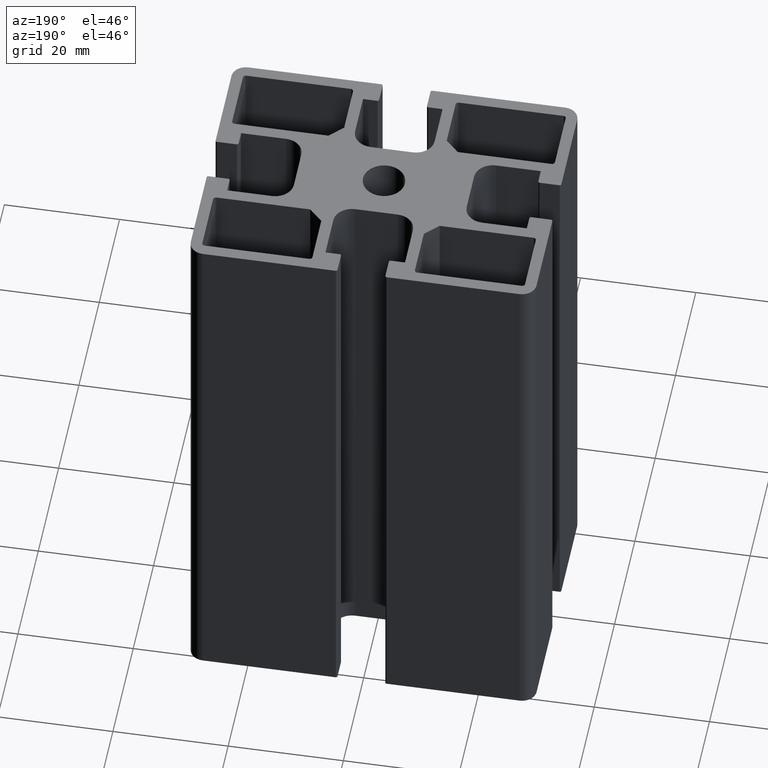
[diagram: clean part render]
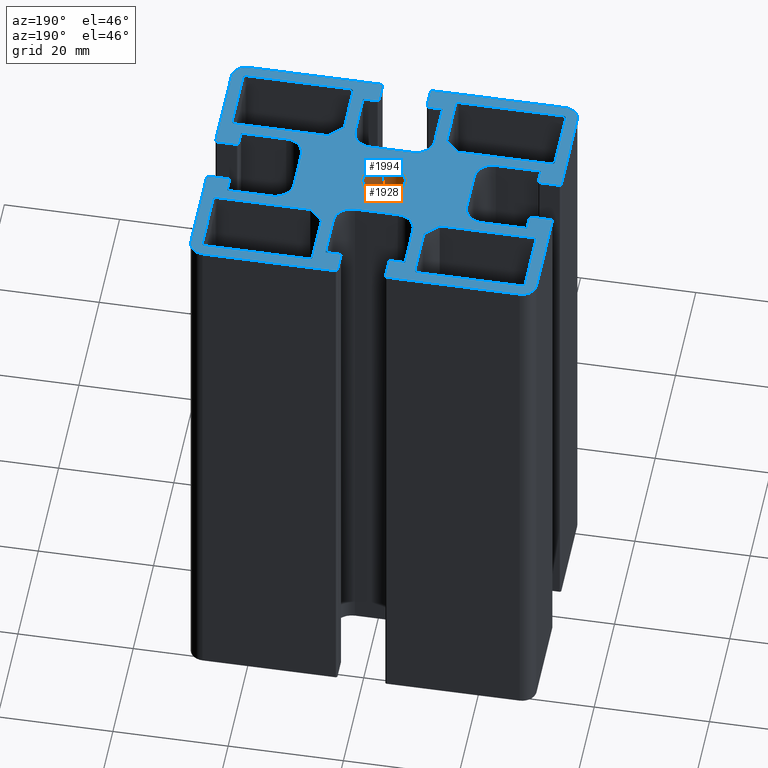
[diagram: same view with the hole feature highlighted: cylindrical wall and planar end face, labeled with their STEP entity ids]
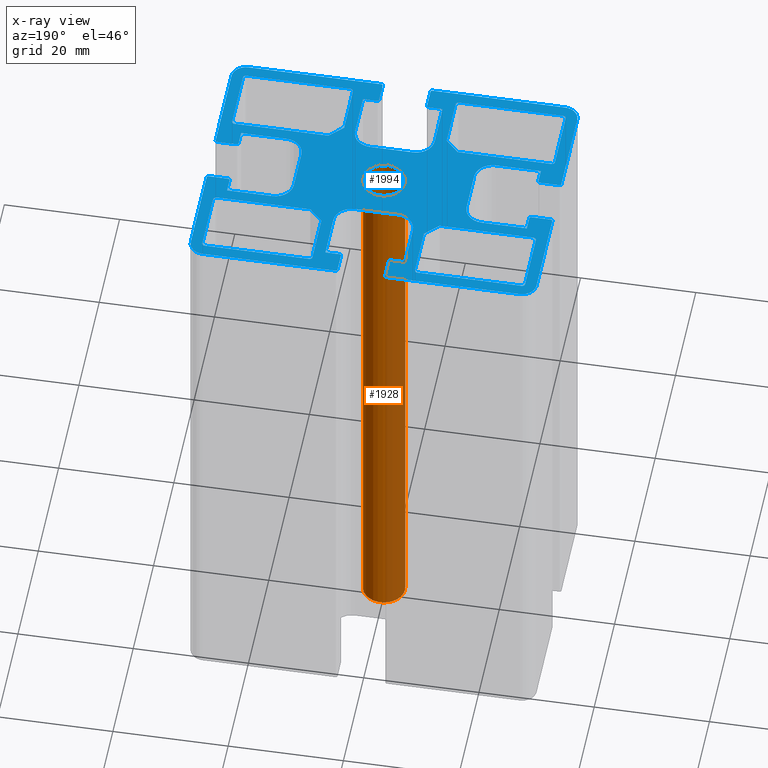
[diagram: x-ray of the same camera — body ghosted, the hole faces saturated]
A machine part, auxiliary view. The highlighted faces form one hole feature of diameter 7.3 mm: the cylindrical wall (entity #1928, orange) and its adjacent planar end face (entity #1994, blue) — they share a circular edge in the B-rep.
The next image is the same camera in x-ray (body ghosted, the hole faces saturated) — the bore reads through the body.
Wall:
#15=FACE_BOUND('',#281,.T.);
#50=CIRCLE('',#2054,3.64999999999984);
#51=CIRCLE('',#2055,3.64999999999984);
#120=CYLINDRICAL_SURFACE('',#2053,3.64999999999984);
#181=FACE_OUTER_BOUND('',#280,.T.);
#280=EDGE_LOOP('',(#1386));
#281=EDGE_LOOP('',(#1387));
#838=VERTEX_POINT('',#2944);
#839=VERTEX_POINT('',#2946);
#1064=EDGE_CURVE('',#838,#838,#50,.T.);
#1065=EDGE_CURVE('',#839,#839,#51,.T.);
#1386=ORIENTED_EDGE('',*,*,#1064,.F.);
#1387=ORIENTED_EDGE('',*,*,#1065,.F.);
#1928=ADVANCED_FACE('',(#181,#15),#120,.F.);
#2053=AXIS2_PLACEMENT_3D('',#2943,#2364,#2365);
#2054=AXIS2_PLACEMENT_3D('',#2945,#2366,#2367);
#2055=AXIS2_PLACEMENT_3D('',#2947,#2368,#2369);
#2364=DIRECTION('center_axis',(0.,0.,1.));
#2365=DIRECTION('ref_axis',(-1.,0.,0.));
#2366=DIRECTION('center_axis',(0.,0.,1.));
#2367=DIRECTION('ref_axis',(-1.,0.,0.));
#2368=DIRECTION('center_axis',(0.,0.,-1.));
#2369=DIRECTION('ref_axis',(-1.,0.,0.));
#2943=CARTESIAN_POINT('Origin',(0.,0.,0.));
#2944=CARTESIAN_POINT('',(3.64999999999984,4.46996081688765E-16,-50.));
#2945=CARTESIAN_POINT('Origin',(0.,0.,-50.));
#2946=CARTESIAN_POINT('',(3.64999999999984,4.46996081688765E-16,50.));
#2947=CARTESIAN_POINT('Origin',(0.,0.,50.));
End face:
#21=FACE_BOUND('',#353,.T.);
#22=FACE_BOUND('',#354,.T.);
#23=FACE_BOUND('',#355,.T.);
#24=FACE_BOUND('',#356,.T.);
#25=FACE_BOUND('',#357,.T.);
#27=CIRCLE('',#2000,0.499999999999987);
#29=CIRCLE('',#2004,0.499999999999987);
#31=CIRCLE('',#2008,0.499999999999987);
#33=CIRCLE('',#2014,0.499999999999987);
#35=CIRCLE('',#2018,0.499999999999987);
#37=CIRCLE('',#2022,0.499999999999987);
#39=CIRCLE('',#2028,0.499999999999987);
#41=CIRCLE('',#2032,0.499999999999987);
#43=CIRCLE('',#2036,0.499999999999987);
#45=CIRCLE('',#2042,0.499999999999987);
#47=CIRCLE('',#2046,0.499999999999987);
#49=CIRCLE('',#2050,0.499999999999987);
#51=CIRCLE('',#2055,3.64999999999984);
#80=CIRCLE('',#2087,0.299999999999996);
#81=CIRCLE('',#2090,0.299999999999996);
#82=CIRCLE('',#2093,2.50000000000002);
#83=CIRCLE('',#2096,0.299999999999996);
#84=CIRCLE('',#2099,0.299999999999996);
#85=CIRCLE('',#2103,3.20000000000002);
#86=CIRCLE('',#2106,3.20000000000002);
#87=CIRCLE('',#2110,0.299999999999996);
#88=CIRCLE('',#2113,0.299999999999996);
#89=CIRCLE('',#2116,2.50000000000002);
#90=CIRCLE('',#2119,0.299999999999996);
#91=CIRCLE('',#2122,0.299999999999996);
#92=CIRCLE('',#2126,3.20000000000002);
#93=CIRCLE('',#2129,3.20000000000002);
#94=CIRCLE('',#2133,0.299999999999996);
#95=CIRCLE('',#2136,0.299999999999996);
#96=CIRCLE('',#2139,2.50000000000002);
#97=CIRCLE('',#2142,0.299999999999996);
#98=CIRCLE('',#2145,0.299999999999996);
#99=CIRCLE('',#2149,3.20000000000002);
#100=CIRCLE('',#2152,3.20000000000002);
#101=CIRCLE('',#2156,0.299999999999996);
#102=CIRCLE('',#2159,0.299999999999996);
#103=CIRCLE('',#2162,2.50000000000002);
#104=CIRCLE('',#2165,0.299999999999996);
#105=CIRCLE('',#2168,0.299999999999996);
#106=CIRCLE('',#2172,3.20000000000002);
#107=CIRCLE('',#2175,3.20000000000002);
#247=FACE_OUTER_BOUND('',#352,.T.);
#352=EDGE_LOOP('',(#1741,#1742,#1743,#1744,#1745,#1746,#1747,#1748,#1749,
#1750,#1751,#1752,#1753,#1754,#1755,#1756,#1757,#1758,#1759,#1760,#1761,
#1762,#1763,#1764,#1765,#1766,#1767,#1768,#1769,#1770,#1771,#1772,#1773,
#1774,#1775,#1776,#1777,#1778,#1779,#1780,#1781,#1782,#1783,#1784,#1785,
#1786,#1787,#1788,#1789,#1790,#1791,#1792,#1793,#1794,#1795,#1796,#1797,
#1798,#1799,#1800,#1801,#1802,#1803,#1804));
#353=EDGE_LOOP('',(#1805,#1806,#1807,#1808,#1809,#1810,#1811,#1812));
#354=EDGE_LOOP('',(#1813,#1814,#1815,#1816,#1817,#1818,#1819,#1820));
#355=EDGE_LOOP('',(#1821,#1822,#1823,#1824,#1825,#1826,#1827,#1828));
#356=EDGE_LOOP('',(#1829,#1830,#1831,#1832,#1833,#1834,#1835,#1836));
#357=EDGE_LOOP('',(#1837));
#361=LINE('',#2759,#569);
#365=LINE('',#2771,#573);
#369=LINE('',#2783,#577);
#373=LINE('',#2795,#581);
#375=LINE('',#2798,#583);
#379=LINE('',#2807,#587);
#383=LINE('',#2819,#591);
#387=LINE('',#2831,#595);
#391=LINE('',#2843,#599);
#393=LINE('',#2846,#601);
#397=LINE('',#2855,#605);
#401=LINE('',#2867,#609);
#405=LINE('',#2879,#613);
#409=LINE('',#2891,#617);
#411=LINE('',#2894,#619);
#415=LINE('',#2903,#623);
#419=LINE('',#2915,#627);
#423=LINE('',#2927,#631);
#427=LINE('',#2939,#635);
#429=LINE('',#2942,#637);
#467=LINE('',#3081,#675);
#470=LINE('',#3089,#678);
#473=LINE('',#3097,#681);
#476=LINE('',#3105,#684);
#479=LINE('',#3113,#687);
#482=LINE('',#3121,#690);
#484=LINE('',#3125,#692);
#487=LINE('',#3133,#695);
#490=LINE('',#3141,#698);
#492=LINE('',#3145,#700);
#495=LINE('',#3153,#703);
#498=LINE('',#3161,#706);
#501=LINE('',#3169,#709);
#504=LINE('',#3177,#712);
#507=LINE('',#3185,#715);
#509=LINE('',#3189,#717);
#512=LINE('',#3197,#720);
#515=LINE('',#3205,#723);
#517=LINE('',#3209,#725);
#520=LINE('',#3217,#728);
#523=LINE('',#3225,#731);
#526=LINE('',#3233,#734);
#529=LINE('',#3241,#737);
#532=LINE('',#3249,#740);
#534=LINE('',#3253,#742);
#537=LINE('',#3261,#745);
#540=LINE('',#3269,#748);
#542=LINE('',#3273,#750);
#545=LINE('',#3281,#753);
#548=LINE('',#3289,#756);
#551=LINE('',#3297,#759);
#554=LINE('',#3305,#762);
#557=LINE('',#3313,#765);
#559=LINE('',#3317,#767);
#562=LINE('',#3325,#770);
#565=LINE('',#3332,#773);
#569=VECTOR('',#2185,8.76654762208418);
#573=VECTOR('',#2197,18.1000000000006);
#577=VECTOR('',#2209,10.5999999999996);
#581=VECTOR('',#2221,16.2665476220846);
#583=VECTOR('',#2225,3.3000000000002);
#587=VECTOR('',#2231,16.2665476220917);
#591=VECTOR('',#2243,10.6000000000007);
#595=VECTOR('',#2255,18.1000000000006);
#599=VECTOR('',#2267,8.76654762209043);
#601=VECTOR('',#2271,3.29999999999106);
#605=VECTOR('',#2277,8.76654762208545);
#609=VECTOR('',#2289,18.0999999999995);
#613=VECTOR('',#2301,10.6);
#617=VECTOR('',#2313,16.2665476220846);
#619=VECTOR('',#2317,3.29999999999899);
#623=VECTOR('',#2323,16.2665476220786);
#627=VECTOR('',#2335,10.5999999999996);
#631=VECTOR('',#2347,18.0999999999997);
#635=VECTOR('',#2359,8.76654762207764);
#637=VECTOR('',#2363,3.30000000000844);
#675=VECTOR('',#2467,2.45000000000005);
#678=VECTOR('',#2476,3.40000000000117);
#681=VECTOR('',#2485,15.5499999999998);
#684=VECTOR('',#2494,23.0500000000004);
#687=VECTOR('',#2503,3.39999999999989);
#690=VECTOR('',#2512,2.45000000000005);
#692=VECTOR('',#2516,7.80000000000001);
#695=VECTOR('',#2525,7.40000000000009);
#698=VECTOR('',#2534,7.80000000000001);
#700=VECTOR('',#2538,2.45000000000005);
#703=VECTOR('',#2547,3.39999999999989);
#706=VECTOR('',#2556,23.0500000000009);
#709=VECTOR('',#2565,15.5499999999998);
#712=VECTOR('',#2574,3.40000000000174);
#715=VECTOR('',#2583,2.45000000000005);
#717=VECTOR('',#2587,7.79999999999887);
#720=VECTOR('',#2596,7.39999999999966);
#723=VECTOR('',#2605,7.79999999999887);
#725=VECTOR('',#2609,2.4499999999999);
#728=VECTOR('',#2618,3.40000000000174);
#731=VECTOR('',#2627,15.5500000000008);
#734=VECTOR('',#2636,23.0500000000009);
#737=VECTOR('',#2645,3.40000000000131);
#740=VECTOR('',#2654,2.45000000000005);
#742=VECTOR('',#2658,7.79999999999959);
#745=VECTOR('',#2667,7.40000000000009);
#748=VECTOR('',#2676,7.79999999999959);
#750=VECTOR('',#2680,2.45000000000005);
#753=VECTOR('',#2689,3.40000000000131);
#756=VECTOR('',#2698,23.0499999999995);
#759=VECTOR('',#2707,15.5500000000001);
#762=VECTOR('',#2716,3.40000000000117);
#765=VECTOR('',#2725,2.4499999999999);
#767=VECTOR('',#2729,7.79999999999944);
#770=VECTOR('',#2738,7.39999999999966);
#773=VECTOR('',#2747,7.79999999999944);
#774=VERTEX_POINT('',#2752);
#777=VERTEX_POINT('',#2757);
#779=VERTEX_POINT('',#2763);
#781=VERTEX_POINT('',#2769);
#783=VERTEX_POINT('',#2775);
#785=VERTEX_POINT('',#2781);
#787=VERTEX_POINT('',#2787);
#789=VERTEX_POINT('',#2793);
#790=VERTEX_POINT('',#2800);
#793=VERTEX_POINT('',#2805);
#795=VERTEX_POINT('',#2811);
#797=VERTEX_POINT('',#2817);
#799=VERTEX_POINT('',#2823);
#801=VERTEX_POINT('',#2829);
#803=VERTEX_POINT('',#2835);
#805=VERTEX_POINT('',#2841);
#806=VERTEX_POINT('',#2848);
#809=VERTEX_POINT('',#2853);
#811=VERTEX_POINT('',#2859);
#813=VERTEX_POINT('',#2865);
#815=VERTEX_POINT('',#2871);
#817=VERTEX_POINT('',#2877);
#819=VERTEX_POINT('',#2883);
#821=VERTEX_POINT('',#2889);
#822=VERTEX_POINT('',#2896);
#825=VERTEX_POINT('',#2901);
#827=VERTEX_POINT('',#2907);
#829=VERTEX_POINT('',#2913);
#831=VERTEX_POINT('',#2919);
#833=VERTEX_POINT('',#2925);
#835=VERTEX_POINT('',#2931);
#837=VERTEX_POINT('',#2937);
#839=VERTEX_POINT('',#2946);
#904=VERTEX_POINT('',#3078);
#905=VERTEX_POINT('',#3080);
#906=VERTEX_POINT('',#3084);
#907=VERTEX_POINT('',#3088);
#908=VERTEX_POINT('',#3092);
#909=VERTEX_POINT('',#3096);
#910=VERTEX_POINT('',#3100);
#911=VERTEX_POINT('',#3104);
#912=VERTEX_POINT('',#3108);
#913=VERTEX_POINT('',#3112);
#914=VERTEX_POINT('',#3116);
#915=VERTEX_POINT('',#3120);
#916=VERTEX_POINT('',#3124);
#917=VERTEX_POINT('',#3128);
#918=VERTEX_POINT('',#3132);
#919=VERTEX_POINT('',#3136);
#920=VERTEX_POINT('',#3140);
#921=VERTEX_POINT('',#3144);
#922=VERTEX_POINT('',#3148);
#923=VERTEX_POINT('',#3152);
#924=VERTEX_POINT('',#3156);
#925=VERTEX_POINT('',#3160);
#926=VERTEX_POINT('',#3164);
#927=VERTEX_POINT('',#3168);
#928=VERTEX_POINT('',#3172);
#929=VERTEX_POINT('',#3176);
#930=VERTEX_POINT('',#3180);
#931=VERTEX_POINT('',#3184);
#932=VERTEX_POINT('',#3188);
#933=VERTEX_POINT('',#3192);
#934=VERTEX_POINT('',#3196);
#935=VERTEX_POINT('',#3200);
#936=VERTEX_POINT('',#3204);
#937=VERTEX_POINT('',#3208);
#938=VERTEX_POINT('',#3212);
#939=VERTEX_POINT('',#3216);
#940=VERTEX_POINT('',#3220);
#941=VERTEX_POINT('',#3224);
#942=VERTEX_POINT('',#3228);
#943=VERTEX_POINT('',#3232);
#944=VERTEX_POINT('',#3236);
#945=VERTEX_POINT('',#3240);
#946=VERTEX_POINT('',#3244);
#947=VERTEX_POINT('',#3248);
#948=VERTEX_POINT('',#3252);
#949=VERTEX_POINT('',#3256);
#950=VERTEX_POINT('',#3260);
#951=VERTEX_POINT('',#3264);
#952=VERTEX_POINT('',#3268);
#953=VERTEX_POINT('',#3272);
#954=VERTEX_POINT('',#3276);
#955=VERTEX_POINT('',#3280);
#956=VERTEX_POINT('',#3284);
#957=VERTEX_POINT('',#3288);
#958=VERTEX_POINT('',#3292);
#959=VERTEX_POINT('',#3296);
#960=VERTEX_POINT('',#3300);
#961=VERTEX_POINT('',#3304);
#962=VERTEX_POINT('',#3308);
#963=VERTEX_POINT('',#3312);
#964=VERTEX_POINT('',#3316);
#965=VERTEX_POINT('',#3320);
#966=VERTEX_POINT('',#3324);
#967=VERTEX_POINT('',#3328);
#971=EDGE_CURVE('',#774,#777,#361,.T.);
#974=EDGE_CURVE('',#777,#779,#27,.T.);
#977=EDGE_CURVE('',#779,#781,#365,.T.);
#980=EDGE_CURVE('',#781,#783,#29,.T.);
#983=EDGE_CURVE('',#783,#785,#369,.T.);
#986=EDGE_CURVE('',#785,#787,#31,.T.);
#989=EDGE_CURVE('',#787,#789,#373,.T.);
#991=EDGE_CURVE('',#789,#774,#375,.T.);
#995=EDGE_CURVE('',#790,#793,#379,.T.);
#998=EDGE_CURVE('',#793,#795,#33,.T.);
#1001=EDGE_CURVE('',#795,#797,#383,.T.);
#1004=EDGE_CURVE('',#797,#799,#35,.T.);
#1007=EDGE_CURVE('',#799,#801,#387,.T.);
#1010=EDGE_CURVE('',#801,#803,#37,.T.);
#1013=EDGE_CURVE('',#803,#805,#391,.T.);
#1015=EDGE_CURVE('',#805,#790,#393,.T.);
#1019=EDGE_CURVE('',#806,#809,#397,.T.);
#1022=EDGE_CURVE('',#809,#811,#39,.T.);
#1025=EDGE_CURVE('',#811,#813,#401,.T.);
#1028=EDGE_CURVE('',#813,#815,#41,.T.);
#1031=EDGE_CURVE('',#815,#817,#405,.T.);
#1034=EDGE_CURVE('',#817,#819,#43,.T.);
#1037=EDGE_CURVE('',#819,#821,#409,.T.);
#1039=EDGE_CURVE('',#821,#806,#411,.T.);
#1043=EDGE_CURVE('',#822,#825,#415,.T.);
#1046=EDGE_CURVE('',#825,#827,#45,.T.);
#1049=EDGE_CURVE('',#827,#829,#419,.T.);
#1052=EDGE_CURVE('',#829,#831,#47,.T.);
#1055=EDGE_CURVE('',#831,#833,#423,.T.);
#1058=EDGE_CURVE('',#833,#835,#49,.T.);
#1061=EDGE_CURVE('',#835,#837,#427,.T.);
#1063=EDGE_CURVE('',#837,#822,#429,.T.);
#1065=EDGE_CURVE('',#839,#839,#51,.T.);
#1131=EDGE_CURVE('',#905,#904,#467,.T.);
#1133=EDGE_CURVE('',#906,#905,#80,.T.);
#1135=EDGE_CURVE('',#907,#906,#470,.T.);
#1137=EDGE_CURVE('',#908,#907,#81,.T.);
#1139=EDGE_CURVE('',#909,#908,#473,.T.);
#1141=EDGE_CURVE('',#910,#909,#82,.T.);
#1143=EDGE_CURVE('',#911,#910,#476,.T.);
#1145=EDGE_CURVE('',#912,#911,#83,.T.);
#1147=EDGE_CURVE('',#913,#912,#479,.T.);
#1149=EDGE_CURVE('',#914,#913,#84,.T.);
#1151=EDGE_CURVE('',#915,#914,#482,.T.);
#1153=EDGE_CURVE('',#916,#915,#484,.T.);
#1155=EDGE_CURVE('',#917,#916,#85,.T.);
#1157=EDGE_CURVE('',#918,#917,#487,.T.);
#1159=EDGE_CURVE('',#919,#918,#86,.T.);
#1161=EDGE_CURVE('',#920,#919,#490,.T.);
#1163=EDGE_CURVE('',#921,#920,#492,.T.);
#1165=EDGE_CURVE('',#922,#921,#87,.T.);
#1167=EDGE_CURVE('',#923,#922,#495,.T.);
#1169=EDGE_CURVE('',#924,#923,#88,.T.);
#1171=EDGE_CURVE('',#925,#924,#498,.T.);
#1173=EDGE_CURVE('',#926,#925,#89,.T.);
#1175=EDGE_CURVE('',#927,#926,#501,.T.);
#1177=EDGE_CURVE('',#928,#927,#90,.T.);
#1179=EDGE_CURVE('',#929,#928,#504,.T.);
#1181=EDGE_CURVE('',#930,#929,#91,.T.);
#1183=EDGE_CURVE('',#931,#930,#507,.T.);
#1185=EDGE_CURVE('',#932,#931,#509,.T.);
#1187=EDGE_CURVE('',#933,#932,#92,.T.);
#1189=EDGE_CURVE('',#934,#933,#512,.T.);
#1191=EDGE_CURVE('',#935,#934,#93,.T.);
#1193=EDGE_CURVE('',#936,#935,#515,.T.);
#1195=EDGE_CURVE('',#937,#936,#517,.T.);
#1197=EDGE_CURVE('',#938,#937,#94,.T.);
#1199=EDGE_CURVE('',#939,#938,#520,.T.);
#1201=EDGE_CURVE('',#940,#939,#95,.T.);
#1203=EDGE_CURVE('',#941,#940,#523,.T.);
#1205=EDGE_CURVE('',#942,#941,#96,.T.);
#1207=EDGE_CURVE('',#943,#942,#526,.T.);
#1209=EDGE_CURVE('',#944,#943,#97,.T.);
#1211=EDGE_CURVE('',#945,#944,#529,.T.);
#1213=EDGE_CURVE('',#946,#945,#98,.T.);
#1215=EDGE_CURVE('',#947,#946,#532,.T.);
#1217=EDGE_CURVE('',#948,#947,#534,.T.);
#1219=EDGE_CURVE('',#949,#948,#99,.T.);
#1221=EDGE_CURVE('',#950,#949,#537,.T.);
#1223=EDGE_CURVE('',#951,#950,#100,.T.);
#1225=EDGE_CURVE('',#952,#951,#540,.T.);
#1227=EDGE_CURVE('',#953,#952,#542,.T.);
#1229=EDGE_CURVE('',#954,#953,#101,.T.);
#1231=EDGE_CURVE('',#955,#954,#545,.T.);
#1233=EDGE_CURVE('',#956,#955,#102,.T.);
#1235=EDGE_CURVE('',#957,#956,#548,.T.);
#1237=EDGE_CURVE('',#958,#957,#103,.T.);
#1239=EDGE_CURVE('',#959,#958,#551,.T.);
#1241=EDGE_CURVE('',#960,#959,#104,.T.);
#1243=EDGE_CURVE('',#961,#960,#554,.T.);
#1245=EDGE_CURVE('',#962,#961,#105,.T.);
#1247=EDGE_CURVE('',#963,#962,#557,.T.);
#1249=EDGE_CURVE('',#964,#963,#559,.T.);
#1251=EDGE_CURVE('',#965,#964,#106,.T.);
#1253=EDGE_CURVE('',#966,#965,#562,.T.);
#1255=EDGE_CURVE('',#967,#966,#107,.T.);
#1257=EDGE_CURVE('',#904,#967,#565,.T.);
#1741=ORIENTED_EDGE('',*,*,#1257,.T.);
#1742=ORIENTED_EDGE('',*,*,#1255,.T.);
#1743=ORIENTED_EDGE('',*,*,#1253,.T.);
#1744=ORIENTED_EDGE('',*,*,#1251,.T.);
#1745=ORIENTED_EDGE('',*,*,#1249,.T.);
#1746=ORIENTED_EDGE('',*,*,#1247,.T.);
#1747=ORIENTED_EDGE('',*,*,#1245,.T.);
#1748=ORIENTED_EDGE('',*,*,#1243,.T.);
#1749=ORIENTED_EDGE('',*,*,#1241,.T.);
#1750=ORIENTED_EDGE('',*,*,#1239,.T.);
#1751=ORIENTED_EDGE('',*,*,#1237,.T.);
#1752=ORIENTED_EDGE('',*,*,#1235,.T.);
#1753=ORIENTED_EDGE('',*,*,#1233,.T.);
#1754=ORIENTED_EDGE('',*,*,#1231,.T.);
#1755=ORIENTED_EDGE('',*,*,#1229,.T.);
#1756=ORIENTED_EDGE('',*,*,#1227,.T.);
#1757=ORIENTED_EDGE('',*,*,#1225,.T.);
#1758=ORIENTED_EDGE('',*,*,#1223,.T.);
#1759=ORIENTED_EDGE('',*,*,#1221,.T.);
#1760=ORIENTED_EDGE('',*,*,#1219,.T.);
#1761=ORIENTED_EDGE('',*,*,#1217,.T.);
#1762=ORIENTED_EDGE('',*,*,#1215,.T.);
#1763=ORIENTED_EDGE('',*,*,#1213,.T.);
#1764=ORIENTED_EDGE('',*,*,#1211,.T.);
#1765=ORIENTED_EDGE('',*,*,#1209,.T.);
#1766=ORIENTED_EDGE('',*,*,#1207,.T.);
#1767=ORIENTED_EDGE('',*,*,#1205,.T.);
#1768=ORIENTED_EDGE('',*,*,#1203,.T.);
#1769=ORIENTED_EDGE('',*,*,#1201,.T.);
#1770=ORIENTED_EDGE('',*,*,#1199,.T.);
#1771=ORIENTED_EDGE('',*,*,#1197,.T.);
#1772=ORIENTED_EDGE('',*,*,#1195,.T.);
#1773=ORIENTED_EDGE('',*,*,#1193,.T.);
#1774=ORIENTED_EDGE('',*,*,#1191,.T.);
#1775=ORIENTED_EDGE('',*,*,#1189,.T.);
#1776=ORIENTED_EDGE('',*,*,#1187,.T.);
#1777=ORIENTED_EDGE('',*,*,#1185,.T.);
#1778=ORIENTED_EDGE('',*,*,#1183,.T.);
#1779=ORIENTED_EDGE('',*,*,#1181,.T.);
#1780=ORIENTED_EDGE('',*,*,#1179,.T.);
#1781=ORIENTED_EDGE('',*,*,#1177,.T.);
#1782=ORIENTED_EDGE('',*,*,#1175,.T.);
#1783=ORIENTED_EDGE('',*,*,#1173,.T.);
#1784=ORIENTED_EDGE('',*,*,#1171,.T.);
#1785=ORIENTED_EDGE('',*,*,#1169,.T.);
#1786=ORIENTED_EDGE('',*,*,#1167,.T.);
#1787=ORIENTED_EDGE('',*,*,#1165,.T.);
#1788=ORIENTED_EDGE('',*,*,#1163,.T.);
#1789=ORIENTED_EDGE('',*,*,#1161,.T.);
#1790=ORIENTED_EDGE('',*,*,#1159,.T.);
#1791=ORIENTED_EDGE('',*,*,#1157,.T.);
#1792=ORIENTED_EDGE('',*,*,#1155,.T.);
#1793=ORIENTED_EDGE('',*,*,#1153,.T.);
#1794=ORIENTED_EDGE('',*,*,#1151,.T.);
#1795=ORIENTED_EDGE('',*,*,#1149,.T.);
#1796=ORIENTED_EDGE('',*,*,#1147,.T.);
#1797=ORIENTED_EDGE('',*,*,#1145,.T.);
#1798=ORIENTED_EDGE('',*,*,#1143,.T.);
#1799=ORIENTED_EDGE('',*,*,#1141,.T.);
#1800=ORIENTED_EDGE('',*,*,#1139,.T.);
#1801=ORIENTED_EDGE('',*,*,#1137,.T.);
#1802=ORIENTED_EDGE('',*,*,#1135,.T.);
#1803=ORIENTED_EDGE('',*,*,#1133,.T.);
#1804=ORIENTED_EDGE('',*,*,#1131,.T.);
#1805=ORIENTED_EDGE('',*,*,#971,.T.);
#1806=ORIENTED_EDGE('',*,*,#974,.T.);
#1807=ORIENTED_EDGE('',*,*,#977,.T.);
#1808=ORIENTED_EDGE('',*,*,#980,.T.);
#1809=ORIENTED_EDGE('',*,*,#983,.T.);
#1810=ORIENTED_EDGE('',*,*,#986,.T.);
#1811=ORIENTED_EDGE('',*,*,#989,.T.);
#1812=ORIENTED_EDGE('',*,*,#991,.T.);
#1813=ORIENTED_EDGE('',*,*,#995,.T.);
#1814=ORIENTED_EDGE('',*,*,#998,.T.);
#1815=ORIENTED_EDGE('',*,*,#1001,.T.);
#1816=ORIENTED_EDGE('',*,*,#1004,.T.);
#1817=ORIENTED_EDGE('',*,*,#1007,.T.);
#1818=ORIENTED_EDGE('',*,*,#1010,.T.);
#1819=ORIENTED_EDGE('',*,*,#1013,.T.);
#1820=ORIENTED_EDGE('',*,*,#1015,.T.);
#1821=ORIENTED_EDGE('',*,*,#1019,.T.);
#1822=ORIENTED_EDGE('',*,*,#1022,.T.);
#1823=ORIENTED_EDGE('',*,*,#1025,.T.);
#1824=ORIENTED_EDGE('',*,*,#1028,.T.);
#1825=ORIENTED_EDGE('',*,*,#1031,.T.);
#1826=ORIENTED_EDGE('',*,*,#1034,.T.);
#1827=ORIENTED_EDGE('',*,*,#1037,.T.);
#1828=ORIENTED_EDGE('',*,*,#1039,.T.);
#1829=ORIENTED_EDGE('',*,*,#1043,.T.);
#1830=ORIENTED_EDGE('',*,*,#1046,.T.);
#1831=ORIENTED_EDGE('',*,*,#1049,.T.);
#1832=ORIENTED_EDGE('',*,*,#1052,.T.);
#1833=ORIENTED_EDGE('',*,*,#1055,.T.);
#1834=ORIENTED_EDGE('',*,*,#1058,.T.);
#1835=ORIENTED_EDGE('',*,*,#1061,.T.);
#1836=ORIENTED_EDGE('',*,*,#1063,.T.);
#1837=ORIENTED_EDGE('',*,*,#1065,.T.);
#1895=PLANE('',#2177);
#1994=ADVANCED_FACE('',(#247,#21,#22,#23,#24,#25),#1895,.T.);
#2000=AXIS2_PLACEMENT_3D('',#2765,#2191,#2192);
#2004=AXIS2_PLACEMENT_3D('',#2777,#2203,#2204);
#2008=AXIS2_PLACEMENT_3D('',#2789,#2215,#2216);
#2014=AXIS2_PLACEMENT_3D('',#2813,#2237,#2238);
#2018=AXIS2_PLACEMENT_3D('',#2825,#2249,#2250);
#2022=AXIS2_PLACEMENT_3D('',#2837,#2261,#2262);
#2028=AXIS2_PLACEMENT_3D('',#2861,#2283,#2284);
#2032=AXIS2_PLACEMENT_3D('',#2873,#2295,#2296);
#2036=AXIS2_PLACEMENT_3D('',#2885,#2307,#2308);
#2042=AXIS2_PLACEMENT_3D('',#2909,#2329,#2330);
#2046=AXIS2_PLACEMENT_3D('',#2921,#2341,#2342);
#2050=AXIS2_PLACEMENT_3D('',#2933,#2353,#2354);
#2055=AXIS2_PLACEMENT_3D('',#2947,#2368,#2369);
#2087=AXIS2_PLACEMENT_3D('',#3085,#2471,#2472);
#2090=AXIS2_PLACEMENT_3D('',#3093,#2480,#2481);
#2093=AXIS2_PLACEMENT_3D('',#3101,#2489,#2490);
#2096=AXIS2_PLACEMENT_3D('',#3109,#2498,#2499);
#2099=AXIS2_PLACEMENT_3D('',#3117,#2507,#2508);
#2103=AXIS2_PLACEMENT_3D('',#3129,#2520,#2521);
#2106=AXIS2_PLACEMENT_3D('',#3137,#2529,#2530);
#2110=AXIS2_PLACEMENT_3D('',#3149,#2542,#2543);
#2113=AXIS2_PLACEMENT_3D('',#3157,#2551,#2552);
#2116=AXIS2_PLACEMENT_3D('',#3165,#2560,#2561);
#2119=AXIS2_PLACEMENT_3D('',#3173,#2569,#2570);
#2122=AXIS2_PLACEMENT_3D('',#3181,#2578,#2579);
#2126=AXIS2_PLACEMENT_3D('',#3193,#2591,#2592);
#2129=AXIS2_PLACEMENT_3D('',#3201,#2600,#2601);
#2133=AXIS2_PLACEMENT_3D('',#3213,#2613,#2614);
#2136=AXIS2_PLACEMENT_3D('',#3221,#2622,#2623);
#2139=AXIS2_PLACEMENT_3D('',#3229,#2631,#2632);
#2142=AXIS2_PLACEMENT_3D('',#3237,#2640,#2641);
#2145=AXIS2_PLACEMENT_3D('',#3245,#2649,#2650);
#2149=AXIS2_PLACEMENT_3D('',#3257,#2662,#2663);
#2152=AXIS2_PLACEMENT_3D('',#3265,#2671,#2672);
#2156=AXIS2_PLACEMENT_3D('',#3277,#2684,#2685);
#2159=AXIS2_PLACEMENT_3D('',#3285,#2693,#2694);
#2162=AXIS2_PLACEMENT_3D('',#3293,#2702,#2703);
#2165=AXIS2_PLACEMENT_3D('',#3301,#2711,#2712);
#2168=AXIS2_PLACEMENT_3D('',#3309,#2720,#2721);
#2172=AXIS2_PLACEMENT_3D('',#3321,#2733,#2734);
#2175=AXIS2_PLACEMENT_3D('',#3329,#2742,#2743);
#2177=AXIS2_PLACEMENT_3D('',#3333,#2748,#2749);
#2185=DIRECTION('',(0.,-1.,0.));
#2191=DIRECTION('center_axis',(0.,0.,-1.));
#2192=DIRECTION('ref_axis',(0.,1.,0.));
#2197=DIRECTION('',(-1.,0.,0.));
#2203=DIRECTION('center_axis',(0.,0.,-1.));
#2204=DIRECTION('ref_axis',(1.,0.,0.));
#2209=DIRECTION('',(0.,1.,0.));
#2215=DIRECTION('center_axis',(0.,0.,-1.));
#2216=DIRECTION('ref_axis',(0.,-1.,0.));
#2221=DIRECTION('',(1.,0.,0.));
#2225=DIRECTION('',(0.707106781186655,-0.70710678118644,0.));
#2231=DIRECTION('',(-1.,0.,0.));
#2237=DIRECTION('center_axis',(0.,0.,-1.));
#2238=DIRECTION('ref_axis',(-1.,0.,0.));
#2243=DIRECTION('',(0.,1.,0.));
#2249=DIRECTION('center_axis',(0.,0.,-1.));
#2250=DIRECTION('ref_axis',(0.,1.,0.));
#2255=DIRECTION('',(1.,0.,0.));
#2261=DIRECTION('center_axis',(0.,0.,-1.));
#2262=DIRECTION('ref_axis',(1.,0.,0.));
#2267=DIRECTION('',(0.,-1.,0.));
#2271=DIRECTION('',(-0.707106781186461,-0.707106781186634,0.));
#2277=DIRECTION('',(0.,1.,0.));
#2283=DIRECTION('center_axis',(0.,0.,-1.));
#2284=DIRECTION('ref_axis',(0.,-1.,0.));
#2289=DIRECTION('',(1.,0.,0.));
#2295=DIRECTION('center_axis',(0.,0.,-1.));
#2296=DIRECTION('ref_axis',(-1.,0.,0.));
#2301=DIRECTION('',(0.,-1.,0.));
#2307=DIRECTION('center_axis',(0.,0.,-1.));
#2308=DIRECTION('ref_axis',(0.,1.,0.));
#2313=DIRECTION('',(-1.,0.,0.));
#2317=DIRECTION('',(-0.707106781186655,0.70710678118644,0.));
#2323=DIRECTION('',(1.,0.,0.));
#2329=DIRECTION('center_axis',(0.,0.,-1.));
#2330=DIRECTION('ref_axis',(1.,0.,0.));
#2335=DIRECTION('',(0.,-1.,0.));
#2341=DIRECTION('center_axis',(0.,0.,-1.));
#2342=DIRECTION('ref_axis',(0.,-1.,0.));
#2347=DIRECTION('',(-1.,0.,0.));
#2353=DIRECTION('center_axis',(0.,0.,-1.));
#2354=DIRECTION('ref_axis',(-1.,0.,0.));
#2359=DIRECTION('',(0.,1.,0.));
#2363=DIRECTION('',(0.70710678118644,0.707106781186655,0.));
#2368=DIRECTION('center_axis',(0.,0.,-1.));
#2369=DIRECTION('ref_axis',(-1.,0.,0.));
#2467=DIRECTION('',(0.,-1.,0.));
#2471=DIRECTION('center_axis',(0.,0.,1.));
#2472=DIRECTION('ref_axis',(0.,-1.,0.));
#2476=DIRECTION('',(-1.,0.,0.));
#2480=DIRECTION('center_axis',(0.,0.,1.));
#2481=DIRECTION('ref_axis',(-1.,0.,0.));
#2485=DIRECTION('',(0.,1.,0.));
#2489=DIRECTION('center_axis',(0.,0.,1.));
#2490=DIRECTION('ref_axis',(0.,1.,0.));
#2494=DIRECTION('',(1.,0.,0.));
#2498=DIRECTION('center_axis',(0.,0.,1.));
#2499=DIRECTION('ref_axis',(1.,0.,0.));
#2503=DIRECTION('',(0.,-1.,0.));
#2507=DIRECTION('center_axis',(0.,0.,1.));
#2508=DIRECTION('ref_axis',(0.,-1.,0.));
#2512=DIRECTION('',(-1.,0.,0.));
#2516=DIRECTION('',(0.,-1.,0.));
#2520=DIRECTION('center_axis',(0.,0.,-1.));
#2521=DIRECTION('ref_axis',(1.,0.,0.));
#2525=DIRECTION('',(1.,0.,0.));
#2529=DIRECTION('center_axis',(0.,0.,-1.));
#2530=DIRECTION('ref_axis',(0.,1.,0.));
#2534=DIRECTION('',(0.,1.,0.));
#2538=DIRECTION('',(-1.,0.,0.));
#2542=DIRECTION('center_axis',(0.,0.,1.));
#2543=DIRECTION('ref_axis',(-1.,0.,0.));
#2547=DIRECTION('',(0.,1.,0.));
#2551=DIRECTION('center_axis',(0.,0.,1.));
#2552=DIRECTION('ref_axis',(0.,1.,0.));
#2556=DIRECTION('',(1.,0.,0.));
#2560=DIRECTION('center_axis',(0.,0.,1.));
#2561=DIRECTION('ref_axis',(1.,0.,0.));
#2565=DIRECTION('',(0.,-1.,0.));
#2569=DIRECTION('center_axis',(0.,0.,1.));
#2570=DIRECTION('ref_axis',(0.,-1.,0.));
#2574=DIRECTION('',(-1.,0.,0.));
#2578=DIRECTION('center_axis',(0.,0.,1.));
#2579=DIRECTION('ref_axis',(-1.,0.,0.));
#2583=DIRECTION('',(0.,1.,0.));
#2587=DIRECTION('',(-1.,0.,0.));
#2591=DIRECTION('center_axis',(0.,0.,-1.));
#2592=DIRECTION('ref_axis',(0.,-1.,0.));
#2596=DIRECTION('',(0.,-1.,0.));
#2600=DIRECTION('center_axis',(0.,0.,-1.));
#2601=DIRECTION('ref_axis',(1.,0.,0.));
#2605=DIRECTION('',(1.,0.,0.));
#2609=DIRECTION('',(0.,1.,0.));
#2613=DIRECTION('center_axis',(0.,0.,1.));
#2614=DIRECTION('ref_axis',(0.,1.,0.));
#2618=DIRECTION('',(1.,0.,0.));
#2622=DIRECTION('center_axis',(0.,0.,1.));
#2623=DIRECTION('ref_axis',(1.,0.,0.));
#2627=DIRECTION('',(0.,-1.,0.));
#2631=DIRECTION('center_axis',(0.,0.,1.));
#2632=DIRECTION('ref_axis',(0.,-1.,0.));
#2636=DIRECTION('',(-1.,0.,0.));
#2640=DIRECTION('center_axis',(0.,0.,1.));
#2641=DIRECTION('ref_axis',(-1.,0.,0.));
#2645=DIRECTION('',(0.,1.,0.));
#2649=DIRECTION('center_axis',(0.,0.,1.));
#2650=DIRECTION('ref_axis',(0.,1.,0.));
#2654=DIRECTION('',(1.,0.,0.));
#2658=DIRECTION('',(0.,1.,0.));
#2662=DIRECTION('center_axis',(0.,0.,-1.));
#2663=DIRECTION('ref_axis',(-1.,0.,0.));
#2667=DIRECTION('',(-1.,0.,0.));
#2671=DIRECTION('center_axis',(0.,0.,-1.));
#2672=DIRECTION('ref_axis',(0.,-1.,0.));
#2676=DIRECTION('',(0.,-1.,0.));
#2680=DIRECTION('',(1.,0.,0.));
#2684=DIRECTION('center_axis',(0.,0.,1.));
#2685=DIRECTION('ref_axis',(1.,0.,0.));
#2689=DIRECTION('',(0.,-1.,0.));
#2693=DIRECTION('center_axis',(0.,0.,1.));
#2694=DIRECTION('ref_axis',(0.,-1.,0.));
#2698=DIRECTION('',(-1.,0.,0.));
#2702=DIRECTION('center_axis',(0.,0.,1.));
#2703=DIRECTION('ref_axis',(-1.,0.,0.));
#2707=DIRECTION('',(0.,1.,0.));
#2711=DIRECTION('center_axis',(0.,0.,1.));
#2712=DIRECTION('ref_axis',(0.,1.,0.));
#2716=DIRECTION('',(1.,0.,0.));
#2720=DIRECTION('center_axis',(0.,0.,1.));
#2721=DIRECTION('ref_axis',(1.,0.,0.));
#2725=DIRECTION('',(0.,-1.,0.));
#2729=DIRECTION('',(1.,0.,0.));
#2733=DIRECTION('center_axis',(0.,0.,-1.));
#2734=DIRECTION('ref_axis',(0.,1.,0.));
#2738=DIRECTION('',(0.,1.,0.));
#2742=DIRECTION('center_axis',(0.,0.,-1.));
#2743=DIRECTION('ref_axis',(-1.,0.,0.));
#2747=DIRECTION('',(-1.,0.,0.));
#2748=DIRECTION('center_axis',(0.,0.,1.));
#2749=DIRECTION('ref_axis',(1.,0.,0.));
#2752=CARTESIAN_POINT('',(-8.8999999999993,-11.2334523779155,50.));
#2757=CARTESIAN_POINT('',(-8.8999999999993,-19.9999999999997,50.));
#2759=CARTESIAN_POINT('',(-8.8999999999993,-9.99999999999972,50.));
#2763=CARTESIAN_POINT('',(-9.39999999999941,-20.4999999999997,50.));
#2765=CARTESIAN_POINT('Origin',(-9.39999999999941,-19.9999999999997,50.));
#2769=CARTESIAN_POINT('',(-27.5,-20.4999999999997,50.));
#2771=CARTESIAN_POINT('',(-13.7499999999998,-20.4999999999997,50.));
#2775=CARTESIAN_POINT('',(-28.0000000000001,-19.9999999999997,50.));
#2777=CARTESIAN_POINT('Origin',(-27.5,-19.9999999999997,50.));
#2781=CARTESIAN_POINT('',(-28.0000000000001,-9.40000000000012,50.));
#2783=CARTESIAN_POINT('',(-28.0000000000001,-4.69999999999992,50.));
#2787=CARTESIAN_POINT('',(-27.5,-8.90000000000015,50.));
#2789=CARTESIAN_POINT('Origin',(-27.5,-9.40000000000012,50.));
#2793=CARTESIAN_POINT('',(-11.2334523779154,-8.90000000000015,50.));
#2795=CARTESIAN_POINT('',(-5.61672618895745,-8.90000000000015,50.));
#2798=CARTESIAN_POINT('',(-9.48336309447762,-10.6500892834374,50.));
#2800=CARTESIAN_POINT('',(-11.2334523779083,8.90000000000001,50.));
#2805=CARTESIAN_POINT('',(-27.5,8.90000000000001,50.));
#2807=CARTESIAN_POINT('',(-13.7499999999998,8.90000000000001,50.));
#2811=CARTESIAN_POINT('',(-28.0000000000001,9.39999999999998,50.));
#2813=CARTESIAN_POINT('Origin',(-27.5,9.39999999999998,50.));
#2817=CARTESIAN_POINT('',(-28.0000000000001,20.0000000000007,50.));
#2819=CARTESIAN_POINT('',(-28.0000000000001,10.0000000000005,50.));
#2823=CARTESIAN_POINT('',(-27.5,20.5,50.));
#2825=CARTESIAN_POINT('Origin',(-27.5,20.0000000000007,50.));
#2829=CARTESIAN_POINT('',(-9.39999999999941,20.5,50.));
#2831=CARTESIAN_POINT('',(-4.69999999999945,20.5,50.));
#2835=CARTESIAN_POINT('',(-8.8999999999993,20.,50.));
#2837=CARTESIAN_POINT('Origin',(-9.39999999999941,20.,50.));
#2841=CARTESIAN_POINT('',(-8.8999999999993,11.2334523779096,50.));
#2843=CARTESIAN_POINT('',(-8.8999999999993,5.61672618895492,50.));
#2846=CARTESIAN_POINT('',(-10.6500892834317,9.48336309447673,50.));
#2848=CARTESIAN_POINT('',(8.90000000000072,11.2334523779145,50.));
#2853=CARTESIAN_POINT('',(8.90000000000072,20.,50.));
#2855=CARTESIAN_POINT('',(8.90000000000072,10.0000000000001,50.));
#2859=CARTESIAN_POINT('',(9.40000000000083,20.5,50.));
#2861=CARTESIAN_POINT('Origin',(9.40000000000083,20.,50.));
#2865=CARTESIAN_POINT('',(27.5000000000003,20.5,50.));
#2867=CARTESIAN_POINT('',(13.7500000000004,20.5,50.));
#2871=CARTESIAN_POINT('',(28.0000000000007,20.,50.));
#2873=CARTESIAN_POINT('Origin',(27.5000000000003,20.,50.));
#2877=CARTESIAN_POINT('',(28.0000000000007,9.39999999999998,50.));
#2879=CARTESIAN_POINT('',(28.0000000000007,4.70000000000013,50.));
#2883=CARTESIAN_POINT('',(27.5000000000006,8.90000000000001,50.));
#2885=CARTESIAN_POINT('Origin',(27.5000000000006,9.39999999999998,50.));
#2889=CARTESIAN_POINT('',(11.233452377916,8.90000000000001,50.));
#2891=CARTESIAN_POINT('',(5.61672618895823,8.90000000000001,50.));
#2894=CARTESIAN_POINT('',(9.48336309447855,10.6500892834369,50.));
#2896=CARTESIAN_POINT('',(11.2334523779219,-8.90000000000015,50.));
#2901=CARTESIAN_POINT('',(27.5000000000006,-8.90000000000015,50.));
#2903=CARTESIAN_POINT('',(13.7500000000005,-8.90000000000015,50.));
#2907=CARTESIAN_POINT('',(28.0000000000007,-9.40000000000012,50.));
#2909=CARTESIAN_POINT('Origin',(27.5000000000006,-9.40000000000012,50.));
#2913=CARTESIAN_POINT('',(28.0000000000007,-19.9999999999997,50.));
#2915=CARTESIAN_POINT('',(28.0000000000007,-9.99999999999972,50.));
#2919=CARTESIAN_POINT('',(27.5000000000006,-20.4999999999997,50.));
#2921=CARTESIAN_POINT('Origin',(27.5000000000006,-19.9999999999997,50.));
#2925=CARTESIAN_POINT('',(9.40000000000083,-20.4999999999997,50.));
#2927=CARTESIAN_POINT('',(4.70000000000066,-20.4999999999997,50.));
#2931=CARTESIAN_POINT('',(8.90000000000072,-19.9999999999997,50.));
#2933=CARTESIAN_POINT('Origin',(9.40000000000083,-19.9999999999997,50.));
#2937=CARTESIAN_POINT('',(8.90000000000072,-11.2334523779221,50.));
#2939=CARTESIAN_POINT('',(8.90000000000072,-5.6167261889609,50.));
#2942=CARTESIAN_POINT('',(10.6500892834425,-9.48336309447973,50.));
#2946=CARTESIAN_POINT('',(3.64999999999984,4.46996081688765E-16,50.));
#2947=CARTESIAN_POINT('Origin',(0.,0.,50.));
#3078=CARTESIAN_POINT('',(25.9999999999999,-6.89999999999998,50.));
#3080=CARTESIAN_POINT('',(25.9999999999999,-4.44999999999993,50.));
#3081=CARTESIAN_POINT('',(25.9999999999999,-6.89999999999998,50.));
#3084=CARTESIAN_POINT('',(26.3,-4.14999999999992,50.));
#3085=CARTESIAN_POINT('Origin',(26.3,-4.44999999999993,50.));
#3088=CARTESIAN_POINT('',(29.7000000000011,-4.14999999999992,50.));
#3089=CARTESIAN_POINT('',(26.3,-4.14999999999992,50.));
#3092=CARTESIAN_POINT('',(30.0000000000011,-4.44999999999993,50.));
#3093=CARTESIAN_POINT('Origin',(29.7000000000011,-4.44999999999993,50.));
#3096=CARTESIAN_POINT('',(30.0000000000011,-19.9999999999997,50.));
#3097=CARTESIAN_POINT('',(30.0000000000011,-4.44999999999993,50.));
#3100=CARTESIAN_POINT('',(27.5000000000011,-22.4999999999997,50.));
#3101=CARTESIAN_POINT('Origin',(27.5000000000011,-19.9999999999997,50.));
#3104=CARTESIAN_POINT('',(4.45000000000078,-22.4999999999997,50.));
#3105=CARTESIAN_POINT('',(27.5000000000011,-22.4999999999997,50.));
#3108=CARTESIAN_POINT('',(4.15000000000077,-22.1999999999997,50.));
#3109=CARTESIAN_POINT('Origin',(4.45000000000078,-22.1999999999997,50.));
#3112=CARTESIAN_POINT('',(4.15000000000077,-18.7999999999998,50.));
#3113=CARTESIAN_POINT('',(4.15000000000077,-22.1999999999997,50.));
#3116=CARTESIAN_POINT('',(4.45000000000078,-18.4999999999998,50.));
#3117=CARTESIAN_POINT('Origin',(4.45000000000078,-18.7999999999998,50.));
#3120=CARTESIAN_POINT('',(6.90000000000083,-18.4999999999998,50.));
#3121=CARTESIAN_POINT('',(4.45000000000078,-18.4999999999998,50.));
#3124=CARTESIAN_POINT('',(6.90000000000083,-10.6999999999998,50.));
#3125=CARTESIAN_POINT('',(6.90000000000083,-18.4999999999998,50.));
#3128=CARTESIAN_POINT('',(3.7000000000009,-7.49999999999972,50.));
#3129=CARTESIAN_POINT('Origin',(3.7000000000009,-10.6999999999998,50.));
#3132=CARTESIAN_POINT('',(-3.69999999999919,-7.49999999999972,50.));
#3133=CARTESIAN_POINT('',(3.7000000000009,-7.49999999999972,50.));
#3136=CARTESIAN_POINT('',(-6.89999999999912,-10.6999999999998,50.));
#3137=CARTESIAN_POINT('Origin',(-3.69999999999919,-10.6999999999998,50.));
#3140=CARTESIAN_POINT('',(-6.89999999999912,-18.4999999999998,50.));
#3141=CARTESIAN_POINT('',(-6.89999999999912,-10.6999999999998,50.));
#3144=CARTESIAN_POINT('',(-4.44999999999908,-18.4999999999998,50.));
#3145=CARTESIAN_POINT('',(-6.89999999999912,-18.4999999999998,50.));
#3148=CARTESIAN_POINT('',(-4.14999999999907,-18.7999999999998,50.));
#3149=CARTESIAN_POINT('Origin',(-4.44999999999908,-18.7999999999998,50.));
#3152=CARTESIAN_POINT('',(-4.14999999999907,-22.1999999999997,50.));
#3153=CARTESIAN_POINT('',(-4.14999999999907,-18.7999999999998,50.));
#3156=CARTESIAN_POINT('',(-4.44999999999908,-22.4999999999997,50.));
#3157=CARTESIAN_POINT('Origin',(-4.44999999999908,-22.1999999999997,50.));
#3160=CARTESIAN_POINT('',(-27.5,-22.4999999999997,50.));
#3161=CARTESIAN_POINT('',(-4.44999999999908,-22.4999999999997,50.));
#3164=CARTESIAN_POINT('',(-30.,-19.9999999999997,50.));
#3165=CARTESIAN_POINT('Origin',(-27.5,-19.9999999999997,50.));
#3168=CARTESIAN_POINT('',(-30.,-4.44999999999993,50.));
#3169=CARTESIAN_POINT('',(-30.,-19.9999999999997,50.));
#3172=CARTESIAN_POINT('',(-29.7,-4.14999999999992,50.));
#3173=CARTESIAN_POINT('Origin',(-29.7,-4.44999999999993,50.));
#3176=CARTESIAN_POINT('',(-26.2999999999982,-4.14999999999992,50.));
#3177=CARTESIAN_POINT('',(-29.7,-4.14999999999992,50.));
#3180=CARTESIAN_POINT('',(-25.9999999999982,-4.44999999999993,50.));
#3181=CARTESIAN_POINT('Origin',(-26.2999999999982,-4.44999999999993,50.));
#3184=CARTESIAN_POINT('',(-25.9999999999982,-6.89999999999998,50.));
#3185=CARTESIAN_POINT('',(-25.9999999999982,-4.44999999999993,50.));
#3188=CARTESIAN_POINT('',(-18.1999999999994,-6.89999999999998,50.));
#3189=CARTESIAN_POINT('',(-25.9999999999982,-6.89999999999998,50.));
#3192=CARTESIAN_POINT('',(-14.9999999999994,-3.6999999999999,50.));
#3193=CARTESIAN_POINT('Origin',(-18.1999999999994,-3.6999999999999,50.));
#3196=CARTESIAN_POINT('',(-14.9999999999994,3.69999999999976,50.));
#3197=CARTESIAN_POINT('',(-14.9999999999994,-3.6999999999999,50.));
#3200=CARTESIAN_POINT('',(-18.1999999999994,6.89999999999984,50.));
#3201=CARTESIAN_POINT('Origin',(-18.1999999999994,3.69999999999976,50.));
#3204=CARTESIAN_POINT('',(-25.9999999999982,6.89999999999984,50.));
#3205=CARTESIAN_POINT('',(-18.1999999999994,6.89999999999984,50.));
#3208=CARTESIAN_POINT('',(-25.9999999999982,4.44999999999993,50.));
#3209=CARTESIAN_POINT('',(-25.9999999999982,6.89999999999984,50.));
#3212=CARTESIAN_POINT('',(-26.2999999999982,4.14999999999992,50.));
#3213=CARTESIAN_POINT('Origin',(-26.2999999999982,4.44999999999993,50.));
#3216=CARTESIAN_POINT('',(-29.7,4.14999999999992,50.));
#3217=CARTESIAN_POINT('',(-26.2999999999982,4.14999999999992,50.));
#3220=CARTESIAN_POINT('',(-30.,4.44999999999993,50.));
#3221=CARTESIAN_POINT('Origin',(-29.7,4.44999999999993,50.));
#3224=CARTESIAN_POINT('',(-30.,20.0000000000007,50.));
#3225=CARTESIAN_POINT('',(-30.,4.44999999999993,50.));
#3228=CARTESIAN_POINT('',(-27.5,22.5000000000007,50.));
#3229=CARTESIAN_POINT('Origin',(-27.5,20.0000000000007,50.));
#3232=CARTESIAN_POINT('',(-4.44999999999908,22.5000000000007,50.));
#3233=CARTESIAN_POINT('',(-27.5,22.5000000000007,50.));
#3236=CARTESIAN_POINT('',(-4.14999999999907,22.2000000000007,50.));
#3237=CARTESIAN_POINT('Origin',(-4.44999999999908,22.2000000000007,50.));
#3240=CARTESIAN_POINT('',(-4.14999999999907,18.7999999999994,50.));
#3241=CARTESIAN_POINT('',(-4.14999999999907,22.2000000000007,50.));
#3244=CARTESIAN_POINT('',(-4.44999999999908,18.4999999999994,50.));
#3245=CARTESIAN_POINT('Origin',(-4.44999999999908,18.7999999999994,50.));
#3248=CARTESIAN_POINT('',(-6.89999999999912,18.4999999999994,50.));
#3249=CARTESIAN_POINT('',(-4.44999999999908,18.4999999999994,50.));
#3252=CARTESIAN_POINT('',(-6.89999999999912,10.6999999999998,50.));
#3253=CARTESIAN_POINT('',(-6.89999999999912,18.4999999999994,50.));
#3256=CARTESIAN_POINT('',(-3.69999999999919,7.49999999999972,50.));
#3257=CARTESIAN_POINT('Origin',(-3.69999999999919,10.6999999999998,50.));
#3260=CARTESIAN_POINT('',(3.7000000000009,7.49999999999972,50.));
#3261=CARTESIAN_POINT('',(-3.69999999999919,7.49999999999972,50.));
#3264=CARTESIAN_POINT('',(6.90000000000083,10.6999999999998,50.));
#3265=CARTESIAN_POINT('Origin',(3.7000000000009,10.6999999999998,50.));
#3268=CARTESIAN_POINT('',(6.90000000000083,18.4999999999994,50.));
#3269=CARTESIAN_POINT('',(6.90000000000083,10.6999999999998,50.));
#3272=CARTESIAN_POINT('',(4.45000000000078,18.4999999999994,50.));
#3273=CARTESIAN_POINT('',(6.90000000000083,18.4999999999994,50.));
#3276=CARTESIAN_POINT('',(4.15000000000077,18.7999999999994,50.));
#3277=CARTESIAN_POINT('Origin',(4.45000000000078,18.7999999999994,50.));
#3280=CARTESIAN_POINT('',(4.15000000000077,22.2000000000007,50.));
#3281=CARTESIAN_POINT('',(4.15000000000077,18.7999999999994,50.));
#3284=CARTESIAN_POINT('',(4.45000000000078,22.5000000000007,50.));
#3285=CARTESIAN_POINT('Origin',(4.45000000000078,22.2000000000007,50.));
#3288=CARTESIAN_POINT('',(27.5000000000003,22.5000000000007,50.));
#3289=CARTESIAN_POINT('',(4.45000000000078,22.5000000000007,50.));
#3292=CARTESIAN_POINT('',(30.0000000000011,20.,50.));
#3293=CARTESIAN_POINT('Origin',(27.5000000000003,20.,50.));
#3296=CARTESIAN_POINT('',(30.0000000000011,4.44999999999993,50.));
#3297=CARTESIAN_POINT('',(30.0000000000011,20.,50.));
#3300=CARTESIAN_POINT('',(29.7000000000011,4.14999999999992,50.));
#3301=CARTESIAN_POINT('Origin',(29.7000000000011,4.44999999999993,50.));
#3304=CARTESIAN_POINT('',(26.3,4.14999999999992,50.));
#3305=CARTESIAN_POINT('',(29.7000000000011,4.14999999999992,50.));
#3308=CARTESIAN_POINT('',(25.9999999999999,4.44999999999993,50.));
#3309=CARTESIAN_POINT('Origin',(26.3,4.44999999999993,50.));
#3312=CARTESIAN_POINT('',(25.9999999999999,6.89999999999984,50.));
#3313=CARTESIAN_POINT('',(25.9999999999999,4.44999999999993,50.));
#3316=CARTESIAN_POINT('',(18.2000000000005,6.89999999999984,50.));
#3317=CARTESIAN_POINT('',(25.9999999999999,6.89999999999984,50.));
#3320=CARTESIAN_POINT('',(15.0000000000006,3.69999999999976,50.));
#3321=CARTESIAN_POINT('Origin',(18.2000000000005,3.69999999999976,50.));
#3324=CARTESIAN_POINT('',(15.0000000000006,-3.6999999999999,50.));
#3325=CARTESIAN_POINT('',(15.0000000000006,3.69999999999976,50.));
#3328=CARTESIAN_POINT('',(18.2000000000005,-6.89999999999998,50.));
#3329=CARTESIAN_POINT('Origin',(18.2000000000005,-3.6999999999999,50.));
#3332=CARTESIAN_POINT('',(18.2000000000005,-6.89999999999998,50.));
#3333=CARTESIAN_POINT('Origin',(4.98043785576422E-13,2.72721974813777E-13,
50.));